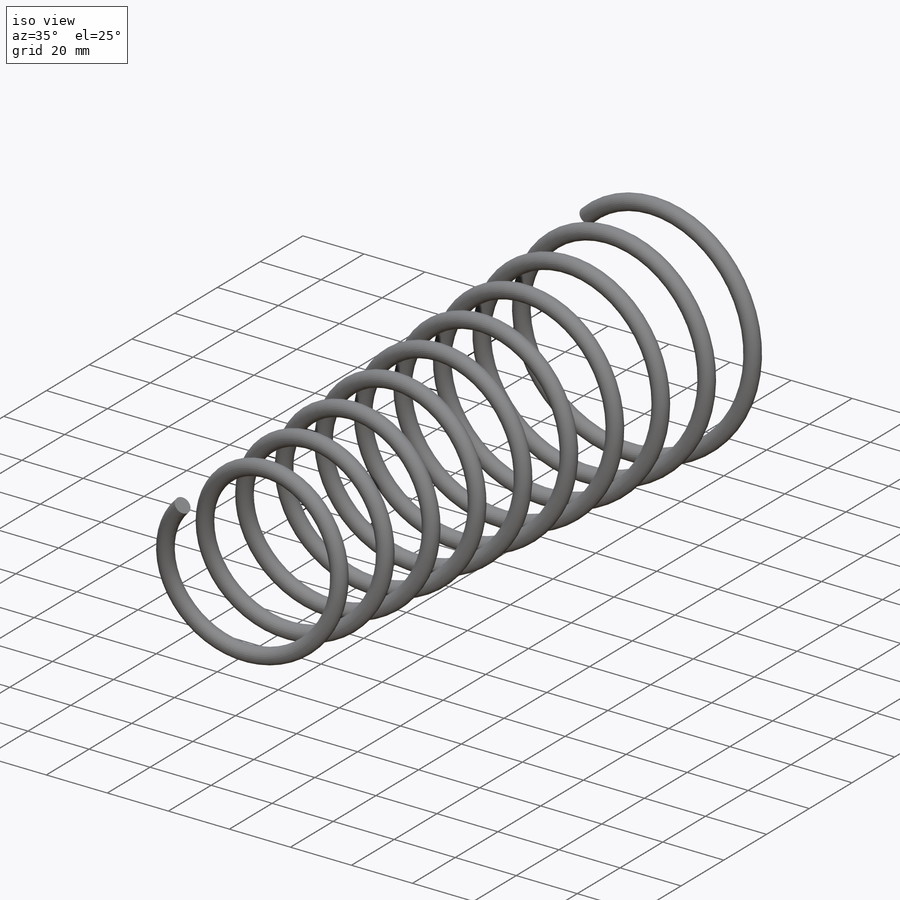
[diagram: iso view]
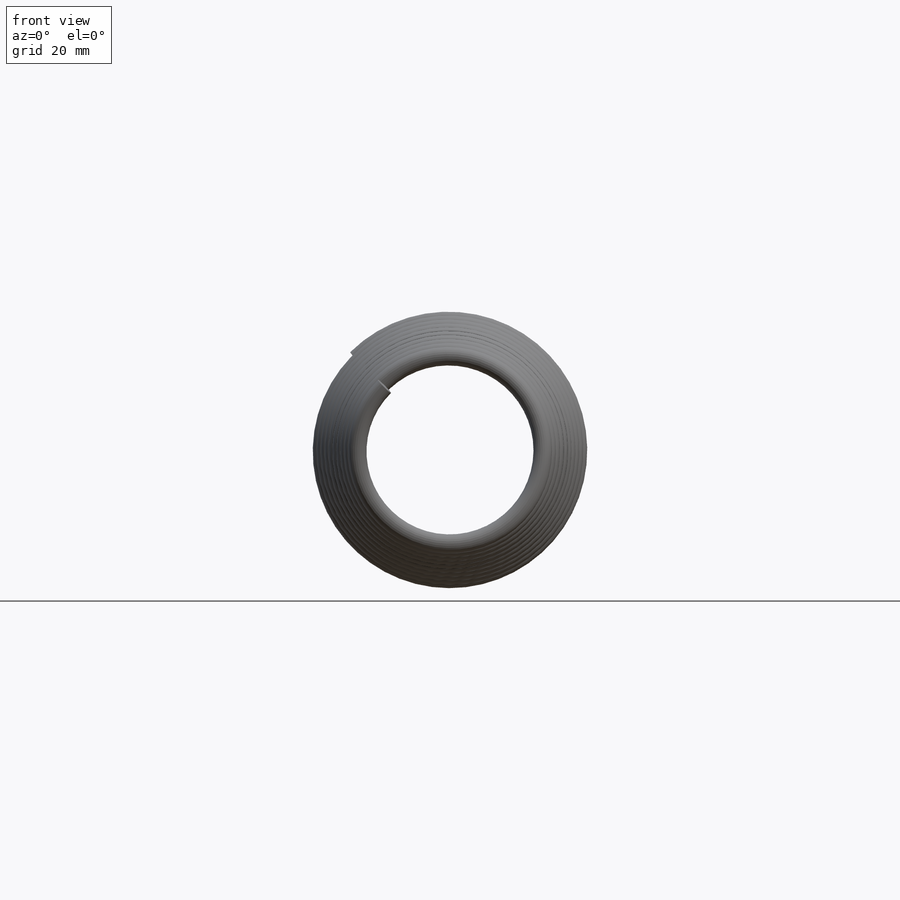
[diagram: front view]
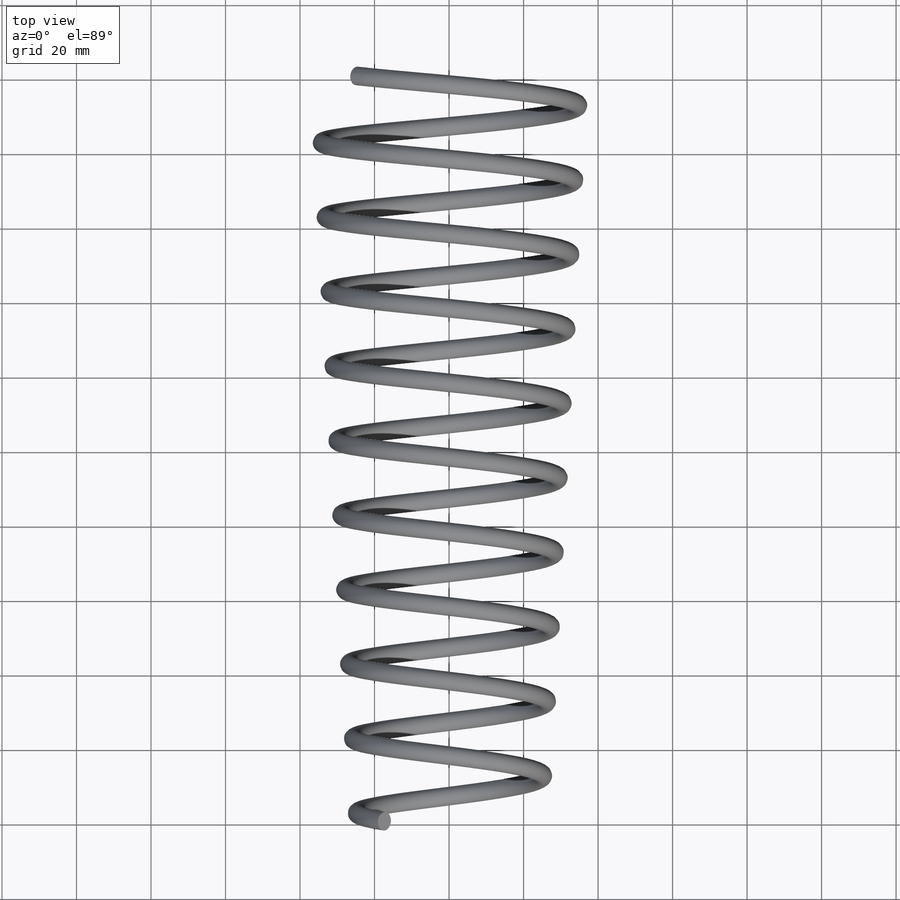
[diagram: top view]
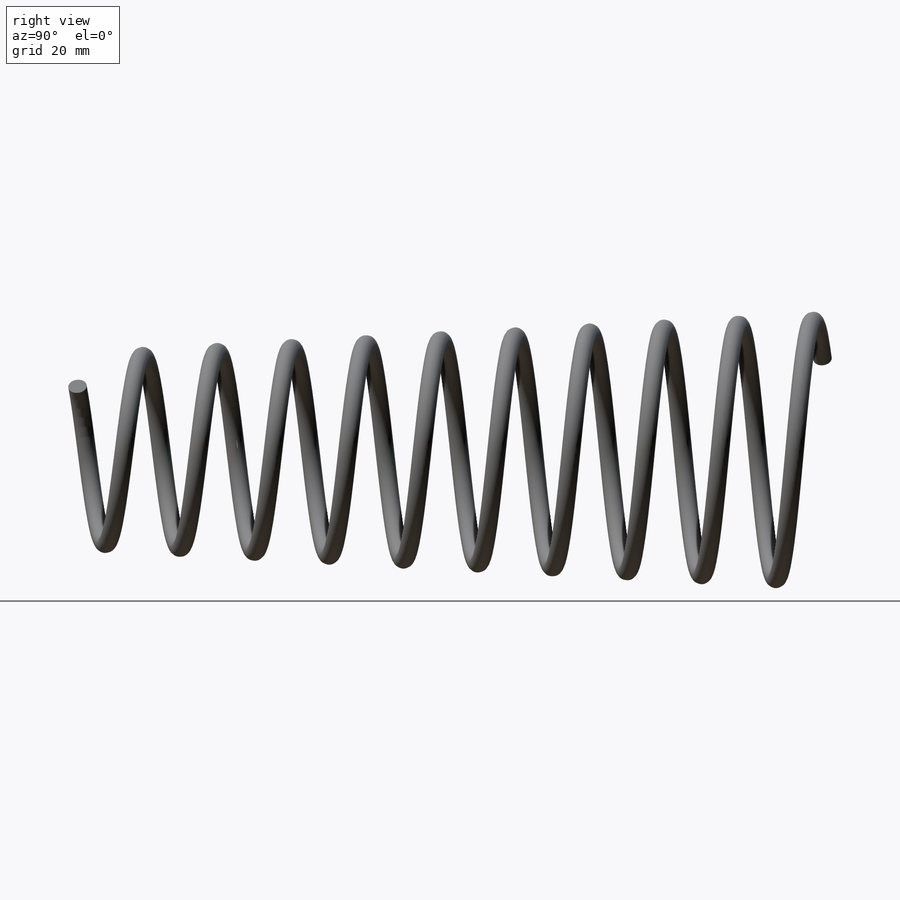
[diagram: right view]
SOLIDWORKS PART (.sldprt)
format: sldprt  version: not decoded by parser v0  size: 1,111,040 bytes
history: native  units: mm
features: plane x6, sketch x4, material x1, helix x1, sweep x1, revolve x1 (+8 scaffold rows collapsed)
feature tree (22):
  scaffold x8  (default folders/planes/origin — collapsed)
  material  "Material <nicht festgelegt>"
  plane  "Vorne"
  plane  "Oben"
  plane  "Rechts"
  sketch  "Skizze1"  dims[D1=70.0mm]
  helix  "Spirale/Helix1"  Pitch=200mm
  plane  "Ebene1"
  plane  "Ebene2"
  sketch  "Skizze8"  dims[D1=5.0mm]
  sweep  "Austragung1"
  sketch  "3D-Skizze9"  dims[c1.D1=~17.105895mm c1.D2=27.5mm c2.D2=~134.275364deg c2.D6=120.0deg c2.D3=27.5mm c3.D3=~107.96211deg c3.D2=90.0deg c3.D4=27.5mm c4.D4=~116.497134deg c4.D2=120.0deg c4.D5=~27.237279mm c5.D5=~75.524799deg c5.D2=90.0deg c6.D2=27.5mm c7.D2=~62.737318deg c7.D8=90.0deg c7.D4=27.5mm c7.D1=27.5mm c7.D6=27.5mm c8.D1=27.5mm c8.D7=27.5mm c9.D1=27.5mm c9.D2=~27.375752mm c10.D2=~45.288294deg c10.D3=~45.288294deg c10.D1=27.5mm c11.D2=2.5mm]
  plane  "Ebene6"
  sketch  "Skizze12"  dims[D1=50.0mm]
  revolve  "Rotation6"  Angle=360deg
decode coverage: 6 of 7 modeling features carry decoded parameters
note: ~ marks probable driven/reference dimensions
note: suppression state not decoded; provenance and decode notes live in map.json
